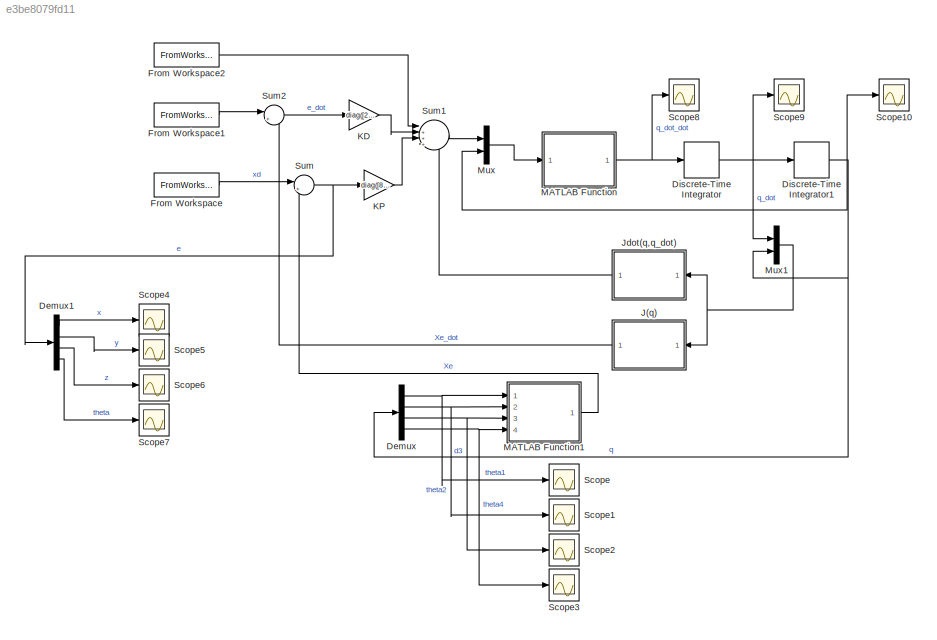
MODEL slx_e3be8079fd11
KIND model
CONFIG AbsTol = auto
CONFIG EnableMultiTasking = off
CONFIG FixedStep = auto
CONFIG MaxStep = auto
CONFIG MinStep = auto
CONFIG RelTol = 1e-3
CONFIG SampleTimeConstraint = Unconstrained
CONFIG Solver = VariableStepAuto
CONFIG SolverName = VariableStepAuto
CONFIG StartTime = 0.0
CONFIG StopTime = 4
BLOCK [Demux] Demux
  DisplayOption = bar
  Ports = [1, 4]
BLOCK [Demux] Demux1
  DisplayOption = bar
  Ports = [1, 4]
BLOCK [DiscreteIntegrator] Discrete-Time Integrator
  ICPrevOutput = DiscIntNeverNeededParam
  ICPrevScaledInput = DiscIntNeverNeededParam
  InitialCondition = q0_dot
  InitialConditionSetting = Auto
  Ports = [1, 1]
  SampleTime = Tc
BLOCK [DiscreteIntegrator] Discrete-Time Integrator1
  ICPrevOutput = DiscIntNeverNeededParam
  ICPrevScaledInput = DiscIntNeverNeededParam
  InitialCondition = q0
  InitialConditionSetting = Auto
  Ports = [1, 1]
  SampleTime = Tc
BLOCK [FromWorkspace] From Workspace
  SampleTime = Tc
  VariableName = [t pd theta_d]
  ZeroCross = on
BLOCK [FromWorkspace] From Workspace1
  SampleTime = Tc
  VariableName = [t pd_dot theta_d_dot]
  ZeroCross = on
BLOCK [FromWorkspace] From Workspace2
  SampleTime = Tc
  VariableName = [t pd_dot_dot theta_d_dot_dot]
  ZeroCross = on
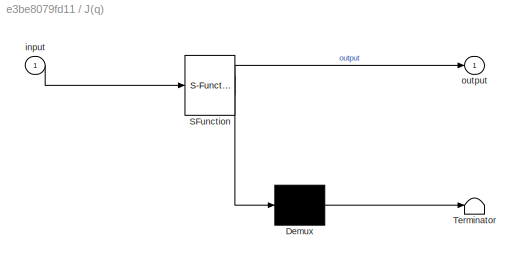
BLOCK [SubSystem] J(q)
  ErrorFcn = Stateflow.Translate.translate
  PermitHierarchicalResolution = ExplicitOnly
  Ports = [1, 1]
  RequestExecContextInheritance = off
  SFBlockType = MATLAB Function
  TreatAsAtomicUnit = on
BLOCK [Demux] J(q)/ Demux 
  Outputs = 1
  Ports = [1, 1]
BLOCK [S-Function] J(q)/ SFunction 
  EnableBusSupport = on
  FunctionName = sf_sfun
  PortCounts = [1 2]
  Ports = [1, 2]
  SFcnIsStateOwnerBlock = off
  SFunctionDeploymentMode = off
  Tag = Stateflow S-Function 4
BLOCK [Terminator] J(q)/ Terminator 
BLOCK [Inport] J(q)/input
  IconDisplay = Port number
BLOCK [Outport] J(q)/output
  IconDisplay = Port number
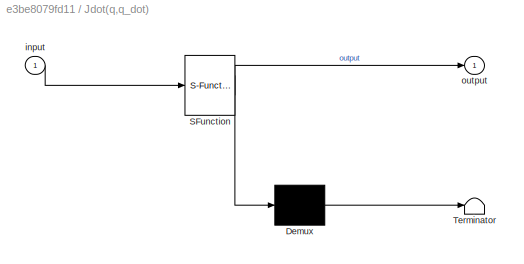
BLOCK [SubSystem] Jdot(q,q_dot)
  ErrorFcn = Stateflow.Translate.translate
  PermitHierarchicalResolution = ExplicitOnly
  Ports = [1, 1]
  RequestExecContextInheritance = off
  SFBlockType = MATLAB Function
  TreatAsAtomicUnit = on
BLOCK [Demux] Jdot(q,q_dot)/ Demux 
  Outputs = 1
  Ports = [1, 1]
BLOCK [S-Function] Jdot(q,q_dot)/ SFunction 
  EnableBusSupport = on
  FunctionName = sf_sfun
  PortCounts = [1 2]
  Ports = [1, 2]
  SFcnIsStateOwnerBlock = off
  SFunctionDeploymentMode = off
  Tag = Stateflow S-Function 3
BLOCK [Terminator] Jdot(q,q_dot)/ Terminator 
BLOCK [Inport] Jdot(q,q_dot)/input
  IconDisplay = Port number
BLOCK [Outport] Jdot(q,q_dot)/output
  IconDisplay = Port number
BLOCK [Gain] KD
  Gain = diag([250 250 1000 1000])
  Multiplication = Matrix(K*u) (u vector)
  OutDataTypeStr = Inherit: Inherit via internal rule
  ParamDataTypeStr = Inherit: Inherit via internal rule
  SaturateOnIntegerOverflow = off
BLOCK [Gain] KP
  Gain = diag([8000 8000 80000 80000])
  Multiplication = Matrix(K*u) (u vector)
  OutDataTypeStr = Inherit: Inherit via internal rule
  ParamDataTypeStr = Inherit: Inherit via internal rule
  SaturateOnIntegerOverflow = off
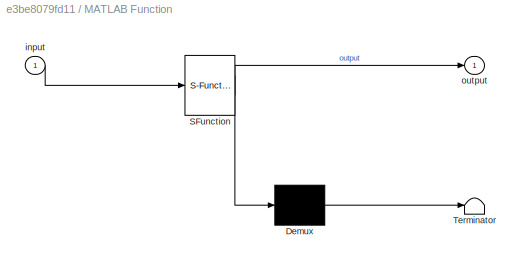
BLOCK [SubSystem] MATLAB Function
  ErrorFcn = Stateflow.Translate.translate
  PermitHierarchicalResolution = ExplicitOnly
  Ports = [1, 1]
  RequestExecContextInheritance = off
  SFBlockType = MATLAB Function
  TreatAsAtomicUnit = on
BLOCK [Demux] MATLAB Function/ Demux 
  Outputs = 1
  Ports = [1, 1]
BLOCK [S-Function] MATLAB Function/ SFunction 
  EnableBusSupport = on
  FunctionName = sf_sfun
  PortCounts = [1 2]
  Ports = [1, 2]
  SFcnIsStateOwnerBlock = off
  SFunctionDeploymentMode = off
  Tag = Stateflow S-Function 1
BLOCK [Terminator] MATLAB Function/ Terminator 
BLOCK [Inport] MATLAB Function/input
  IconDisplay = Port number
BLOCK [Outport] MATLAB Function/output
  IconDisplay = Port number
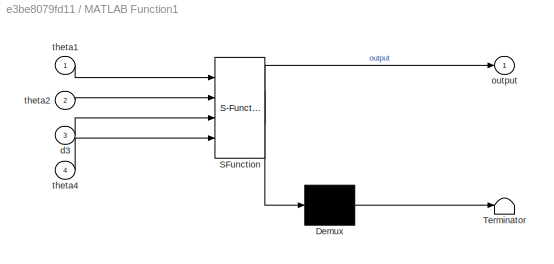
BLOCK [SubSystem] MATLAB Function1
  ErrorFcn = Stateflow.Translate.translate
  PermitHierarchicalResolution = ExplicitOnly
  Ports = [4, 1]
  RequestExecContextInheritance = off
  SFBlockType = MATLAB Function
  TreatAsAtomicUnit = on
BLOCK [Demux] MATLAB Function1/ Demux 
  Outputs = 1
  Ports = [1, 1]
BLOCK [S-Function] MATLAB Function1/ SFunction 
  EnableBusSupport = on
  FunctionName = sf_sfun
  PortCounts = [4 2]
  Ports = [4, 2]
  SFcnIsStateOwnerBlock = off
  SFunctionDeploymentMode = off
  Tag = Stateflow S-Function 2
BLOCK [Terminator] MATLAB Function1/ Terminator 
BLOCK [Inport] MATLAB Function1/d3
  IconDisplay = Port number
  Port = 3
BLOCK [Outport] MATLAB Function1/output
  IconDisplay = Port number
BLOCK [Inport] MATLAB Function1/theta1
  IconDisplay = Port number
BLOCK [Inport] MATLAB Function1/theta2
  IconDisplay = Port number
  Port = 2
BLOCK [Inport] MATLAB Function1/theta4
  IconDisplay = Port number
  Port = 4
BLOCK [Mux] Mux
  DisplayOption = bar
  Inputs = 2
  Ports = [2, 1]
BLOCK [Mux] Mux1
  DisplayOption = bar
  Inputs = 2
  Ports = [2, 1]
BLOCK [Scope] Scope
  Floating = off
  NumInputPorts = 1
  Ports = [1]
  ScopeSpecificationString = Simulink.scopes.TimeScopeBlockCfg('CurrentConfiguration', extmgr.ConfigurationSet(extmgr.Configuration('Core','General UI',true),extmgr.Configuration('Core','Source UI',true),extmgr.Configuration('Sources','WiredSimulink',true,'DataLoggingVariableName','theta1','DataLogging',true,'DataLoggingSaveFormat','StructureWithTime'),extmgr.Configuration('Visuals','Time Domain',true,'SerializedDisplays',{st...<+2834ch>
BLOCK [Scope] Scope1
  Floating = off
  NumInputPorts = 1
  Ports = [1]
  ScopeSpecificationString = Simulink.scopes.TimeScopeBlockCfg('CurrentConfiguration', extmgr.ConfigurationSet(extmgr.Configuration('Core','General UI',true),extmgr.Configuration('Core','Source UI',true),extmgr.Configuration('Sources','WiredSimulink',true,'DataLoggingVariableName','theta2','DataLogging',true,'DataLoggingSaveFormat','StructureWithTime'),extmgr.Configuration('Visuals','Time Domain',true,'SerializedDisplays',{st...<+1424ch>
BLOCK [Scope] Scope10
  Floating = off
  NumInputPorts = 1
  Ports = [1]
  ScopeSpecificationString = Simulink.scopes.TimeScopeBlockCfg('CurrentConfiguration', extmgr.ConfigurationSet(extmgr.Configuration('Core','General UI',true),extmgr.Configuration('Core','Source UI',true),extmgr.Configuration('Sources','WiredSimulink',true,'DataLoggingVariableName','q','DataLogging',true,'DataLoggingSaveFormat','Array'),extmgr.Configuration('Visuals','Time Domain',true,'SerializedDisplays',{struct('MinYLimReal...<+1401ch>
BLOCK [Scope] Scope2
  Floating = off
  NumInputPorts = 1
  Ports = [1]
  ScopeSpecificationString = Simulink.scopes.TimeScopeBlockCfg('CurrentConfiguration', extmgr.ConfigurationSet(extmgr.Configuration('Core','General UI',true),extmgr.Configuration('Core','Source UI',true),extmgr.Configuration('Sources','WiredSimulink',true,'DataLoggingVariableName','d3','DataLogging',true,'DataLoggingSaveFormat','StructureWithTime'),extmgr.Configuration('Visuals','Time Domain',true,'SerializedDisplays',{struct...<+1414ch>
BLOCK [Scope] Scope3
  Floating = off
  NumInputPorts = 1
  Ports = [1]
  ScopeSpecificationString = Simulink.scopes.TimeScopeBlockCfg('CurrentConfiguration', extmgr.ConfigurationSet(extmgr.Configuration('Core','General UI',true),extmgr.Configuration('Core','Source UI',true),extmgr.Configuration('Sources','WiredSimulink',true,'DataLoggingVariableName','theta4','DataLogging',true,'DataLoggingSaveFormat','StructureWithTime'),extmgr.Configuration('Visuals','Time Domain',true,'SerializedDisplays',{st...<+2836ch>
BLOCK [Scope] Scope4
  Floating = off
  NumInputPorts = 1
  Ports = [1]
  ScopeSpecificationString = Simulink.scopes.TimeScopeBlockCfg('CurrentConfiguration', extmgr.ConfigurationSet(extmgr.Configuration('Core','General UI',true),extmgr.Configuration('Core','Source UI',true),extmgr.Configuration('Sources','WiredSimulink',true,'DataLoggingVariableName','x','DataLogging',true,'DataLoggingSaveFormat','StructureWithTime'),extmgr.Configuration('Visuals','Time Domain',true,'SerializedDisplays',{struct(...<+1414ch>
BLOCK [Scope] Scope5
  Floating = off
  NumInputPorts = 1
  Ports = [1]
  ScopeSpecificationString = Simulink.scopes.TimeScopeBlockCfg('CurrentConfiguration', extmgr.ConfigurationSet(extmgr.Configuration('Core','General UI',true),extmgr.Configuration('Core','Source UI',true),extmgr.Configuration('Sources','WiredSimulink',true,'DataLoggingVariableName','y','DataLogging',true,'DataLoggingSaveFormat','StructureWithTime'),extmgr.Configuration('Visuals','Time Domain',true,'SerializedDisplays',{struct(...<+1414ch>
BLOCK [Scope] Scope6
  Floating = off
  NumInputPorts = 1
  Ports = [1]
  ScopeSpecificationString = Simulink.scopes.TimeScopeBlockCfg('CurrentConfiguration', extmgr.ConfigurationSet(extmgr.Configuration('Core','General UI',true),extmgr.Configuration('Core','Source UI',true),extmgr.Configuration('Sources','WiredSimulink',true,'DataLoggingVariableName','z','DataLogging',true,'DataLoggingSaveFormat','StructureWithTime'),extmgr.Configuration('Visuals','Time Domain',true,'SerializedDisplays',{struct(...<+1414ch>
BLOCK [Scope] Scope7
  Floating = off
  NumInputPorts = 1
  Ports = [1]
  ScopeSpecificationString = Simulink.scopes.TimeScopeBlockCfg('CurrentConfiguration', extmgr.ConfigurationSet(extmgr.Configuration('Core','General UI',true),extmgr.Configuration('Core','Source UI',true),extmgr.Configuration('Sources','WiredSimulink',true,'DataLoggingVariableName','theta','DataLogging',true,'DataLoggingSaveFormat','StructureWithTime'),extmgr.Configuration('Visuals','Time Domain',true,'SerializedDisplays',{str...<+1470ch>
BLOCK [Scope] Scope8
  Floating = off
  NumInputPorts = 1
  Ports = [1]
  ScopeSpecificationString = Simulink.scopes.TimeScopeBlockCfg('CurrentConfiguration', extmgr.ConfigurationSet(extmgr.Configuration('Core','General UI',true),extmgr.Configuration('Core','Source UI',true),extmgr.Configuration('Sources','WiredSimulink',true,'DataLoggingVariableName','q_dot_dot','DataLogging',true,'DataLoggingSaveFormat','Array'),extmgr.Configuration('Visuals','Time Domain',true,'SerializedDisplays',{struct('Min...<+1409ch>
BLOCK [Scope] Scope9
  Floating = off
  NumInputPorts = 1
  Ports = [1]
  ScopeSpecificationString = Simulink.scopes.TimeScopeBlockCfg('CurrentConfiguration', extmgr.ConfigurationSet(extmgr.Configuration('Core','General UI',true),extmgr.Configuration('Core','Source UI',true),extmgr.Configuration('Sources','WiredSimulink',true,'DataLoggingVariableName','q_dot','DataLogging',true,'DataLoggingSaveFormat','Array'),extmgr.Configuration('Visuals','Time Domain',true,'SerializedDisplays',{struct('MinYLim...<+1405ch>
BLOCK [Sum] Sum
  IconShape = round
  InputSameDT = off
  Inputs = |+-
  OutDataTypeStr = Inherit: Inherit via internal rule
  Ports = [2, 1]
  SaturateOnIntegerOverflow = off
BLOCK [Sum] Sum1
  IconShape = round
  InputSameDT = off
  Inputs = |+++-
  OutDataTypeStr = Inherit: Inherit via internal rule
  Ports = [4, 1]
  SaturateOnIntegerOverflow = off
BLOCK [Sum] Sum2
  IconShape = round
  InputSameDT = off
  Inputs = |+-
  OutDataTypeStr = Inherit: Inherit via internal rule
  Ports = [2, 1]
  SaturateOnIntegerOverflow = off
LINE Demux1:1 -> Scope4:1
LINE Demux1:2 -> Scope5:1
LINE Demux1:3 -> Scope6:1
LINE Demux1:4 -> Scope7:1
NET Demux:1 -> MATLAB Function1:1, Scope:1
NET Demux:2 -> MATLAB Function1:2, Scope1:1
NET Demux:3 -> MATLAB Function1:3, Scope2:1
NET Demux:4 -> MATLAB Function1:4, Scope3:1
NET Discrete-Time Integrator1:1 -> Demux:1, Mux1:2, Mux:2, Scope10:1
NET Discrete-Time Integrator:1 -> Discrete-Time Integrator1:1, Mux1:1, Scope9:1
LINE From Workspace1:1 -> Sum2:1
LINE From Workspace2:1 -> Sum1:1
LINE From Workspace:1 -> Sum:1
LINE J(q):1 -> Sum2:2
LINE Jdot(q,q_dot):1 -> Sum1:4
LINE KD:1 -> Sum1:2
LINE KP:1 -> Sum1:3
LINE MATLAB Function1:1 -> Sum:2
NET MATLAB Function:1 -> Discrete-Time Integrator:1, Scope8:1
NET Mux1:1 -> J(q):1, Jdot(q,q_dot):1
LINE Mux:1 -> MATLAB Function:1
LINE Sum1:1 -> Mux:1
LINE Sum2:1 -> KD:1
NET Sum:1 -> Demux1:1, KP:1
note: NET lines group one-source signal fan-out (src -> all destinations, sorted); 1:1 wires keep LINE
CHART MATLAB Function states=1 transitions=1
  STATE_LABEL 'eML_blk_kernel()'
  STATE_LABEL 'SCRIPT:\nfunction output=Jacobian_inverse(input)\n%INPUT is (theta1, theta2, d3, theta4,xd_dot_plus_Ke) \ntheta1=input(5,:); d1=0; a1=0.5; alpha1=0; %parameter link1\ntheta2=input(6,:); d2=0; a2=0.5; alpha2=0; %parameter link2\ntheta3=0; d3=input(7,:); a3=0; alpha3=0;  %parameter link3\ntheta4=input(8,:); d4=0; a4=0; alpha4=0;  %parameter link4\n    Jv = [-0.5*(sin(theta1)+sin(theta1+theta2)) -0.5*sin(th...<+173ch>'
CHART MATLAB Function1 states=1 transitions=1
  STATE_LABEL 'eML_blk_kernel()'
  STATE_LABEL 'SCRIPT:\nfunction output = direct_kinematic(theta1,theta2,d3,theta4)\n% Direct kinematics function of SCARA \n    A01 = [cos(theta1) -sin(theta1) 0 0.5.*cos(theta1);\n           sin(theta1) cos(theta1) 0 0.5.*sin(theta1);\n           0 0 1 0;\n           0 0 0 1];\n    A12 = [cos(theta2) -sin(theta2) 0 0.5.*cos(theta2);\n           sin(theta2) cos(theta2) 0 0.5.*sin(theta2);\n           0 0 1 0;\n          ...<+381ch>'
CHART Jdot(q,q_dot) states=1 transitions=1
  STATE_LABEL 'eML_blk_kernel()'
  STATE_LABEL 'SCRIPT:\nfunction output = Jacobian_dot(input)\n% Part 1 Jacobian Differential: J(q)_dot\n    theta1 = input(5,:);\n    theta2 = input(6,:);\n    theta1_dot = input(1,:);\n    theta2_dot = input(2,:);\n    Jv = [-0.5*(sin(theta1)+sin(theta1+theta2)) -0.5*sin(theta1+theta2) 0 0;\n          0.5*(cos(theta1)+cos(theta1+theta2)) 0.5*cos(theta1+theta2) 0 0;\n          0 0 -1 0;\n          1 1 0 1;];\n     Jd = [-...<+348ch>'
CHART J(q) states=1 transitions=1
  STATE_LABEL 'eML_blk_kernel()'
  STATE_LABEL 'SCRIPT:\nfunction output = Jacobian(input)\n% Part 1 Jacobian: J(q)\n    theta1 = input(5,:);\n    theta2 = input(6,:);\n    Jv = [-0.5*(sin(theta1)+sin(theta1+theta2)) -0.5*sin(theta1+theta2) 0 0; 0.5*(cos(theta1)+cos(theta1+theta2)) 0.5*cos(theta1+theta2) 0 0; 0 0 -1 0; 1 1 0 1;];\n    q_dot = [input(1,:); input(2,:); input(3,:); input(4,:)];\n    output = Jv*q_dot;\nend\n'
